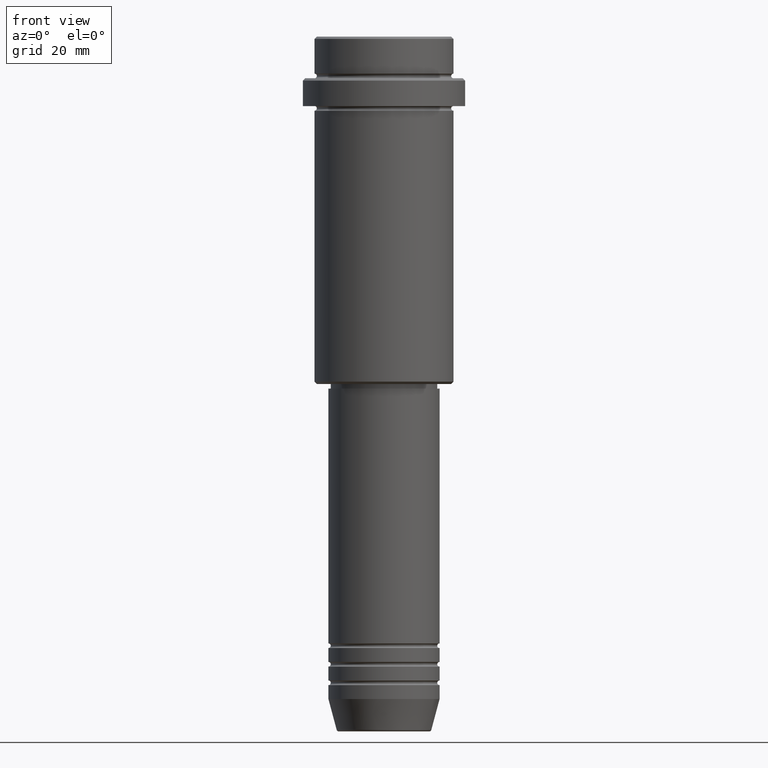
[diagram: clean part render]
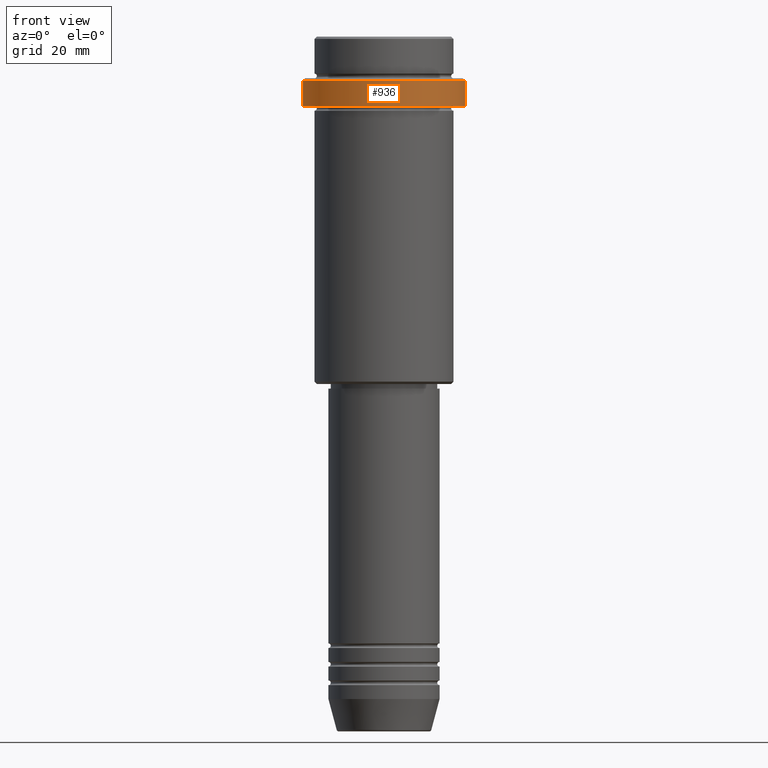
[diagram: same view with one face highlighted and labeled with its STEP entity id]
A machine part, front view. The second image highlights one B-rep face of the part: STEP entity #936.
In plain terms, the highlighted cylindrical surface (partial cylindrical patch) has radius 17.5 mm, axis along (-0, -0, 1).
Its self-contained STEP definition (entity closure, byte-faithful):
#60 = VERTEX_POINT ( 'NONE', #827 ) ;
#181 = VECTOR ( 'NONE', #789, 1000.000000000000000 ) ;
#226 = CIRCLE ( 'NONE', #1042, 17.50000000000000000 ) ;
#229 = CYLINDRICAL_SURFACE ( 'NONE', #885, 17.50000000000000000 ) ;
#238 = DIRECTION ( 'NONE',  ( -0.000000000000000000, -0.000000000000000000, 1.000000000000000000 ) ) ;
#245 = VECTOR ( 'NONE', #773, 1000.000000000000000 ) ;
#335 = FACE_OUTER_BOUND ( 'NONE', #427, .T. ) ;
#337 = DIRECTION ( 'NONE',  ( 0.000000000000000000, 0.000000000000000000, -1.000000000000000000 ) ) ;
#345 = EDGE_CURVE ( 'NONE', #736, #1170, #502, .T. ) ;
#351 = CARTESIAN_POINT ( 'NONE',  ( -17.50000000000000000, 2.143131898507868248E-15, 0.000000000000000000 ) ) ;
#407 = EDGE_CURVE ( 'NONE', #443, #60, #226, .T. ) ;
#427 = EDGE_LOOP ( 'NONE', ( #1320, #643, #837, #1253 ) ) ;
#443 = VERTEX_POINT ( 'NONE', #466 ) ;
#454 = DIRECTION ( 'NONE',  ( 1.000000000000000000, 0.000000000000000000, 0.000000000000000000 ) ) ;
#466 = CARTESIAN_POINT ( 'NONE',  ( 17.50000000000000000, 0.000000000000000000, -9.500000000000014211 ) ) ;
#467 = EDGE_CURVE ( 'NONE', #736, #60, #794, .T. ) ;
#502 = CIRCLE ( 'NONE', #927, 17.50000000000000000 ) ;
#635 = CARTESIAN_POINT ( 'NONE',  ( 17.50000000000000000, 0.000000000000000000, -15.00000000000000000 ) ) ;
#643 = ORIENTED_EDGE ( 'NONE', *, *, #345, .T. ) ;
#676 = DIRECTION ( 'NONE',  ( 1.000000000000000000, 0.000000000000000000, 0.000000000000000000 ) ) ;
#736 = VERTEX_POINT ( 'NONE', #1390 ) ;
#773 = DIRECTION ( 'NONE',  ( -0.000000000000000000, -0.000000000000000000, 1.000000000000000000 ) ) ;
#782 = LINE ( 'NONE', #1191, #245 ) ;
#789 = DIRECTION ( 'NONE',  ( -0.000000000000000000, -0.000000000000000000, 1.000000000000000000 ) ) ;
#794 = LINE ( 'NONE', #351, #181 ) ;
#827 = CARTESIAN_POINT ( 'NONE',  ( -17.50000000000000000, 2.143131898507868248E-15, -9.500000000000014211 ) ) ;
#828 = EDGE_CURVE ( 'NONE', #1170, #443, #782, .T. ) ;
#837 = ORIENTED_EDGE ( 'NONE', *, *, #828, .T. ) ;
#875 = CARTESIAN_POINT ( 'NONE',  ( 0.000000000000000000, 0.000000000000000000, -9.500000000000014211 ) ) ;
#885 = AXIS2_PLACEMENT_3D ( 'NONE', #1313, #238, #676 ) ;
#927 = AXIS2_PLACEMENT_3D ( 'NONE', #1097, #1091, #454 ) ;
#936 = ADVANCED_FACE ( 'NONE', ( #335 ), #229, .T. ) ;
#1042 = AXIS2_PLACEMENT_3D ( 'NONE', #875, #337, #1316 ) ;
#1091 = DIRECTION ( 'NONE',  ( -0.000000000000000000, -0.000000000000000000, 1.000000000000000000 ) ) ;
#1097 = CARTESIAN_POINT ( 'NONE',  ( 0.000000000000000000, 0.000000000000000000, -15.00000000000000000 ) ) ;
#1170 = VERTEX_POINT ( 'NONE', #635 ) ;
#1191 = CARTESIAN_POINT ( 'NONE',  ( 17.50000000000000000, 0.000000000000000000, 0.000000000000000000 ) ) ;
#1253 = ORIENTED_EDGE ( 'NONE', *, *, #407, .T. ) ;
#1313 = CARTESIAN_POINT ( 'NONE',  ( 0.000000000000000000, 0.000000000000000000, 0.000000000000000000 ) ) ;
#1316 = DIRECTION ( 'NONE',  ( 1.000000000000000000, 0.000000000000000000, 0.000000000000000000 ) ) ;
#1320 = ORIENTED_EDGE ( 'NONE', *, *, #467, .F. ) ;
#1390 = CARTESIAN_POINT ( 'NONE',  ( -17.50000000000000000, 2.143131898507868248E-15, -15.00000000000000000 ) ) ;